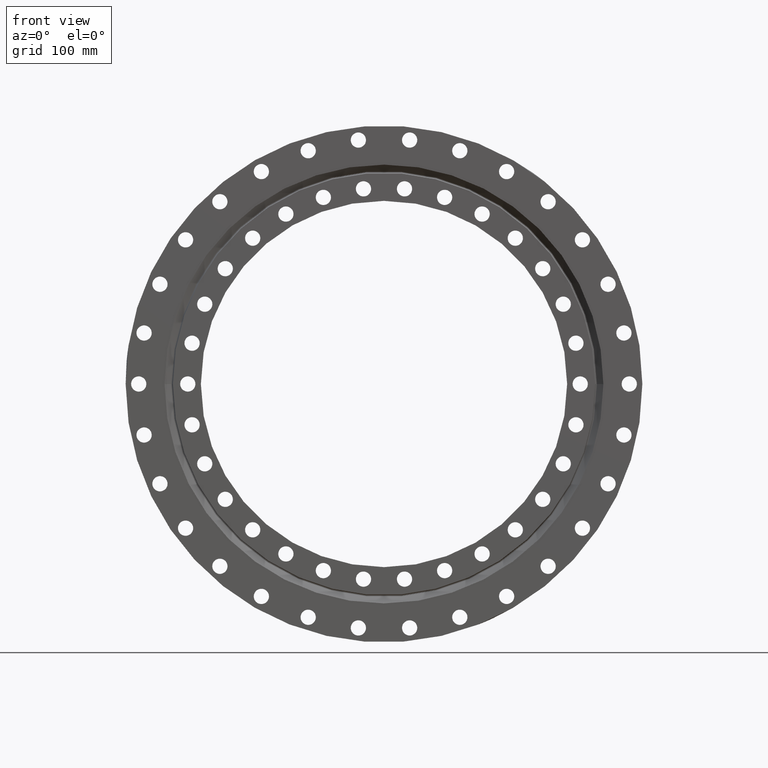
[diagram: clean part render]
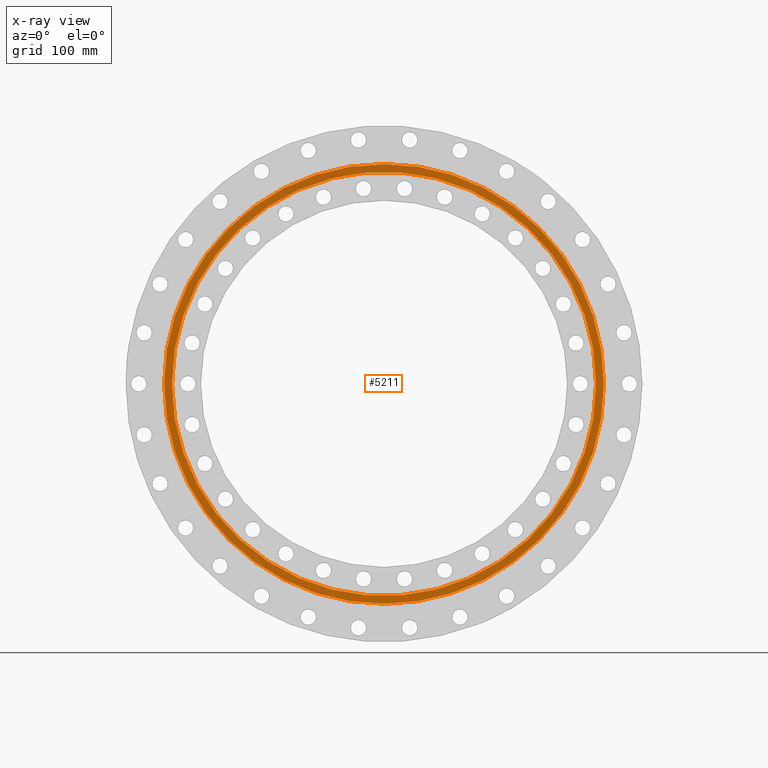
[diagram: x-ray — body ghosted, one internal face saturated and labeled with its STEP entity id]
A machine part, front view, then the same camera in x-ray: the body is ghosted and one INTERNAL B-rep face — a face not visible from any outside direction — is saturated and labeled: STEP entity #5211.
In plain terms, the highlighted planar face has unit normal (0, -1, 0).
Its self-contained STEP definition (entity closure, byte-faithful):
#60 = AXIS2_PLACEMENT_3D ( 'NONE', #1516, #2191, #2736 ) ;
#596 = CARTESIAN_POINT ( 'NONE',  ( -194.5000000000000000, -15.00000000000000000, 0.0000000000000000000 ) ) ;
#682 = FACE_OUTER_BOUND ( 'NONE', #3720, .T. ) ;
#754 = FACE_BOUND ( 'NONE', #6110, .T. ) ;
#1030 = DIRECTION ( 'NONE',  ( 0.0000000000000000000, 1.000000000000000000, 0.0000000000000000000 ) ) ;
#1050 = CARTESIAN_POINT ( 'NONE',  ( 0.0000000000000000000, -15.00000000000000000, 0.0000000000000000000 ) ) ;
#1376 = EDGE_CURVE ( 'NONE', #1726, #6526, #6049, .T. ) ;
#1499 = EDGE_CURVE ( 'NONE', #3214, #6080, #5130, .T. ) ;
#1516 = CARTESIAN_POINT ( 'NONE',  ( 0.0000000000000000000, -15.00000000000000000, 0.0000000000000000000 ) ) ;
#1552 = CIRCLE ( 'NONE', #5757, 194.5000000000000000 ) ;
#1726 = VERTEX_POINT ( 'NONE', #1867 ) ;
#1856 = DIRECTION ( 'NONE',  ( 0.0000000000000000000, -1.000000000000000000, 0.0000000000000000000 ) ) ;
#1867 = CARTESIAN_POINT ( 'NONE',  ( -201.7500000000000300, -15.00000000000000000, 0.0000000000000000000 ) ) ;
#1899 = DIRECTION ( 'NONE',  ( 1.000000000000000000, 0.0000000000000000000, 0.0000000000000000000 ) ) ;
#1932 = CIRCLE ( 'NONE', #7176, 201.7500000000000300 ) ;
#1963 = CARTESIAN_POINT ( 'NONE',  ( 4.371240781644530500E-016, -15.00000000000000000, 0.0000000000000000000 ) ) ;
#2049 = ORIENTED_EDGE ( 'NONE', *, *, #1376, .T. ) ;
#2070 = ORIENTED_EDGE ( 'NONE', *, *, #1499, .T. ) ;
#2173 = EDGE_CURVE ( 'NONE', #6080, #3214, #1552, .T. ) ;
#2191 = DIRECTION ( 'NONE',  ( 0.0000000000000000000, 1.000000000000000000, 0.0000000000000000000 ) ) ;
#2736 = DIRECTION ( 'NONE',  ( -1.000000000000000000, 0.0000000000000000000, 0.0000000000000000000 ) ) ;
#2982 = DIRECTION ( 'NONE',  ( 0.0000000000000000000, -1.000000000000000000, 0.0000000000000000000 ) ) ;
#3032 = CARTESIAN_POINT ( 'NONE',  ( 4.371240781644530500E-016, -15.00000000000000000, 0.0000000000000000000 ) ) ;
#3113 = DIRECTION ( 'NONE',  ( 1.000000000000000000, 0.0000000000000000000, 0.0000000000000000000 ) ) ;
#3214 = VERTEX_POINT ( 'NONE', #7246 ) ;
#3369 = ORIENTED_EDGE ( 'NONE', *, *, #4766, .T. ) ;
#3720 = EDGE_LOOP ( 'NONE', ( #2049, #3369 ) ) ;
#4019 = DIRECTION ( 'NONE',  ( -1.000000000000000000, 0.0000000000000000000, 0.0000000000000000000 ) ) ;
#4150 = CARTESIAN_POINT ( 'NONE',  ( -202.5000000000000000, -15.00000000000000000, 0.0000000000000000000 ) ) ;
#4420 = PLANE ( 'NONE',  #5595 ) ;
#4766 = EDGE_CURVE ( 'NONE', #6526, #1726, #1932, .T. ) ;
#5130 = CIRCLE ( 'NONE', #60, 194.5000000000000000 ) ;
#5211 = ADVANCED_FACE ( 'NONE', ( #754, #682 ), #4420, .T. ) ;
#5285 = ORIENTED_EDGE ( 'NONE', *, *, #2173, .T. ) ;
#5590 = DIRECTION ( 'NONE',  ( 0.0000000000000000000, -1.000000000000000000, 0.0000000000000000000 ) ) ;
#5595 = AXIS2_PLACEMENT_3D ( 'NONE', #4150, #2982, #3113 ) ;
#5707 = DIRECTION ( 'NONE',  ( 1.000000000000000000, 0.0000000000000000000, 0.0000000000000000000 ) ) ;
#5757 = AXIS2_PLACEMENT_3D ( 'NONE', #1050, #1030, #4019 ) ;
#6049 = CIRCLE ( 'NONE', #6450, 201.7500000000000300 ) ;
#6080 = VERTEX_POINT ( 'NONE', #596 ) ;
#6110 = EDGE_LOOP ( 'NONE', ( #5285, #2070 ) ) ;
#6309 = CARTESIAN_POINT ( 'NONE',  ( 201.7500000000000300, -15.00000000000000000, 2.470724917279785400E-014 ) ) ;
#6450 = AXIS2_PLACEMENT_3D ( 'NONE', #1963, #1856, #1899 ) ;
#6526 = VERTEX_POINT ( 'NONE', #6309 ) ;
#7176 = AXIS2_PLACEMENT_3D ( 'NONE', #3032, #5590, #5707 ) ;
#7246 = CARTESIAN_POINT ( 'NONE',  ( 194.5000000000000000, -15.00000000000000000, 2.381938024341602100E-014 ) ) ;